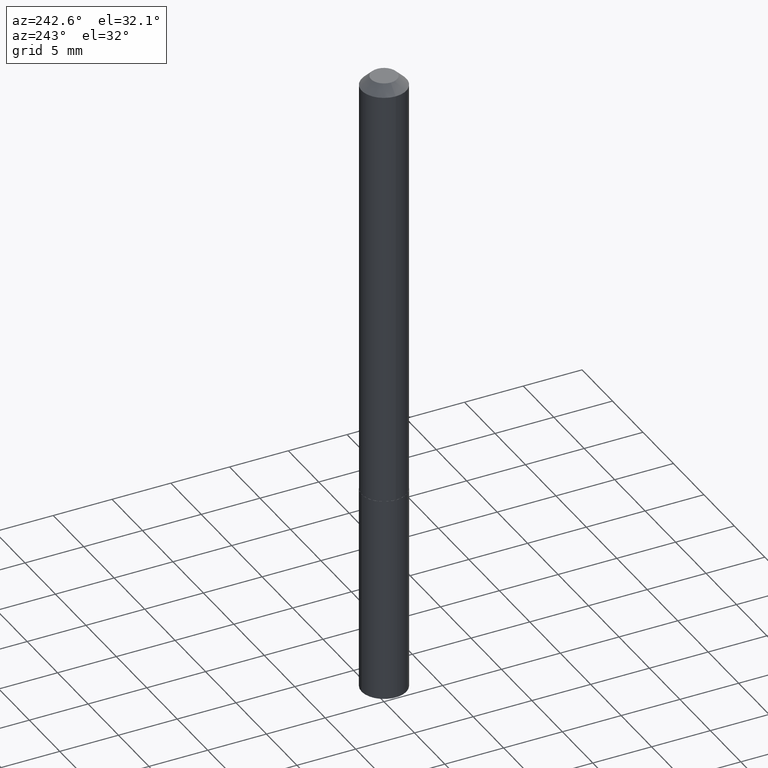
[diagram: clean part render]
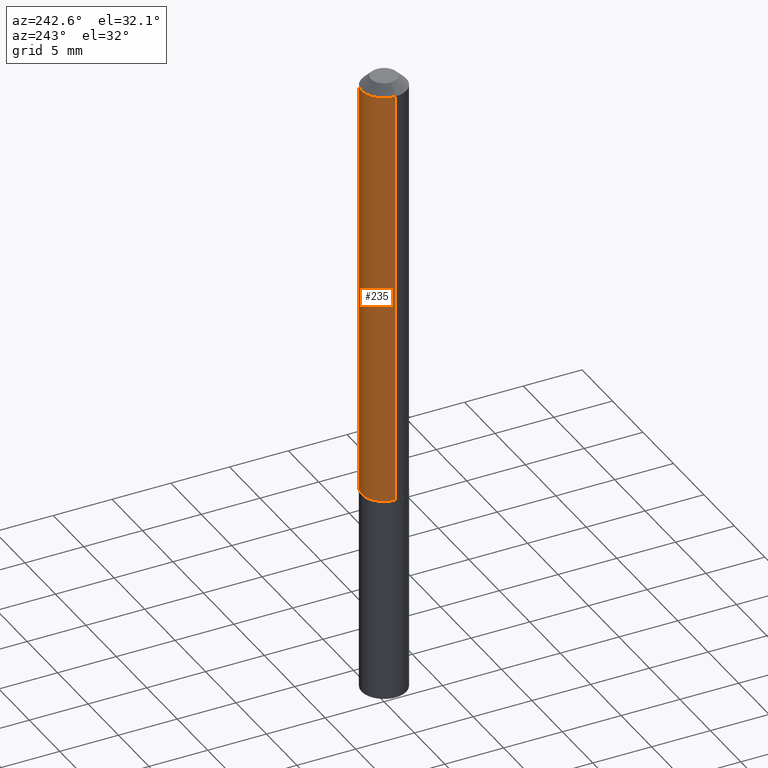
[diagram: same view with one face highlighted and labeled with its STEP entity id]
A machine part, auxiliary view. The second image highlights one B-rep face of the part: STEP entity #235.
In plain terms, the highlighted cylindrical surface (edge-blend (fillet) strip) has radius 1.8999 mm, axis along (-0, 0, 1).
Its self-contained STEP definition (entity closure, byte-faithful):
#15 = CYLINDRICAL_SURFACE ( 'NONE', #373, 0.07480000000000010252 ) ;
#75 = EDGE_CURVE ( 'NONE', #187, #289, #345, .T. ) ;
#80 = CARTESIAN_POINT ( 'NONE',  ( 0.07480000000000018578, -5.579387179471347865E-15, -1.448400000000000354 ) ) ;
#103 = CIRCLE ( 'NONE', #299, 0.07480000000000000537 ) ;
#117 = CARTESIAN_POINT ( 'NONE',  ( -0.07480000000000000537, -2.051599215161074541E-15, -0.03125000000000020123 ) ) ;
#127 = AXIS2_PLACEMENT_3D ( 'NONE', #300, #148, #297 ) ;
#137 = DIRECTION ( 'NONE',  ( 1.000000000000000000, -6.982962677686266711E-15, 0.000000000000000000 ) ) ;
#144 = CARTESIAN_POINT ( 'NONE',  ( -0.07480000000000018578, -4.525575604831857918E-15, -1.448400000000000354 ) ) ;
#148 = DIRECTION ( 'NONE',  ( -2.445468806185136597E-29, 3.491481338843145583E-15, 1.000000000000000000 ) ) ;
#151 = CIRCLE ( 'NONE', #127, 0.07480000000000018578 ) ;
#175 = EDGE_CURVE ( 'NONE', #289, #355, #103, .T. ) ;
#187 = VERTEX_POINT ( 'NONE', #80 ) ;
#195 = DIRECTION ( 'NONE',  ( -2.445468806185136877E-29, 3.491481338843145188E-15, 1.000000000000000000 ) ) ;
#197 = VECTOR ( 'NONE', #296, 39.37007874015748143 ) ;
#199 = CARTESIAN_POINT ( 'NONE',  ( 0.07480000000000010252, -5.223256082909333921E-16, 3.647380228295364368E-30 ) ) ;
#201 = FACE_OUTER_BOUND ( 'NONE', #244, .T. ) ;
#212 = LINE ( 'NONE', #326, #197 ) ;
#227 = DIRECTION ( 'NONE',  ( -2.445468806185136597E-29, 3.491481338843145583E-15, 1.000000000000000000 ) ) ;
#235 = ADVANCED_FACE ( 'NONE', ( #201 ), #15, .T. ) ;
#240 = ORIENTED_EDGE ( 'NONE', *, *, #75, .F. ) ;
#244 = EDGE_LOOP ( 'NONE', ( #313, #368, #306, #240 ) ) ;
#245 = EDGE_CURVE ( 'NONE', #187, #332, #151, .T. ) ;
#260 = CARTESIAN_POINT ( 'NONE',  ( 0.000000000000000000, 0.000000000000000000, 0.000000000000000000 ) ) ;
#275 = CARTESIAN_POINT ( 'NONE',  ( 0.07480000000000000537, -6.314344001297818025E-16, -0.03125000000000020123 ) ) ;
#289 = VERTEX_POINT ( 'NONE', #275 ) ;
#292 = VECTOR ( 'NONE', #195, 39.37007874015748143 ) ;
#296 = DIRECTION ( 'NONE',  ( -2.445468806185136877E-29, 3.491481338843145188E-15, 1.000000000000000000 ) ) ;
#297 = DIRECTION ( 'NONE',  ( 1.000000000000000000, -6.982962677686271444E-15, 0.000000000000000000 ) ) ;
#299 = AXIS2_PLACEMENT_3D ( 'NONE', #348, #227, #137 ) ;
#300 = CARTESIAN_POINT ( 'NONE',  ( 3.542017018878552782E-29, -5.057061571180413486E-15, -1.448400000000000354 ) ) ;
#306 = ORIENTED_EDGE ( 'NONE', *, *, #175, .F. ) ;
#313 = ORIENTED_EDGE ( 'NONE', *, *, #245, .T. ) ;
#320 = DIRECTION ( 'NONE',  ( 1.000000000000000000, -6.982962677686265922E-15, 4.876176775795935232E-29 ) ) ;
#326 = CARTESIAN_POINT ( 'NONE',  ( -0.07480000000000010252, 5.314859663485556675E-16, -3.679363447510674285E-30 ) ) ;
#330 = EDGE_CURVE ( 'NONE', #332, #355, #212, .T. ) ;
#332 = VERTEX_POINT ( 'NONE', #144 ) ;
#345 = LINE ( 'NONE', #199, #292 ) ;
#348 = CARTESIAN_POINT ( 'NONE',  ( 7.642090019328601786E-31, -1.091087918388490144E-16, -0.03125000000000020123 ) ) ;
#355 = VERTEX_POINT ( 'NONE', #117 ) ;
#368 = ORIENTED_EDGE ( 'NONE', *, *, #330, .T. ) ;
#373 = AXIS2_PLACEMENT_3D ( 'NONE', #260, #376, #320 ) ;
#376 = DIRECTION ( 'NONE',  ( -2.445468806185136597E-29, 3.491481338843145583E-15, 1.000000000000000000 ) ) ;